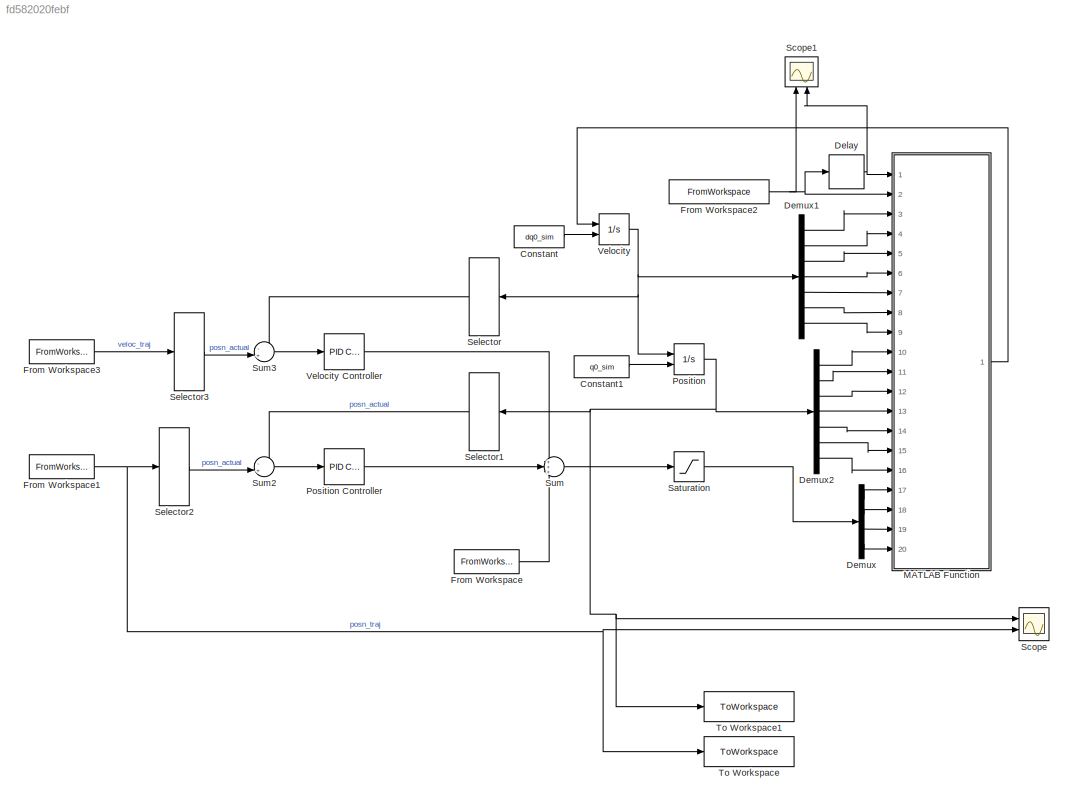
MODEL slx_fd582020febf
KIND model
CONFIG AbsTol = auto
CONFIG EnableMultiTasking = off
CONFIG FixedStep = auto
CONFIG MaxStep = auto
CONFIG MinStep = auto
CONFIG RelTol = 1e-3
CONFIG SampleTimeConstraint = Unconstrained
CONFIG Solver = VariableStepAuto
CONFIG SolverName = VariableStepAuto
CONFIG StartTime = 0.0
CONFIG StopTime = 3
BLOCK [Constant] Constant
  Value = dq0_sim
BLOCK [Constant] Constant1
  Value = q0_sim
BLOCK [Delay] Delay
  DelayLength = 1
  InitialCondition = 12
  InputPortMap = u0
  Ports = [1, 1]
BLOCK [Demux] Demux
  DisplayOption = bar
  Ports = [1, 4]
BLOCK [Demux] Demux1
  DisplayOption = bar
  Outputs = 7
  Ports = [1, 7]
BLOCK [Demux] Demux2
  DisplayOption = bar
  Outputs = 7
  Ports = [1, 7]
BLOCK [FromWorkspace] From Workspace
  Interpolate = off
  OutputAfterFinalValue = Setting to zero
  SampleTime = 0
  VariableName = torques
  ZeroCross = on
BLOCK [FromWorkspace] From Workspace1
  OutputAfterFinalValue = Holding final value
  SampleTime = 0
  VariableName = positions
  ZeroCross = on
BLOCK [FromWorkspace] From Workspace2
  Interpolate = off
  OutputAfterFinalValue = Holding final value
  SampleTime = 0
  VariableName = contact_modes
  ZeroCross = on
BLOCK [FromWorkspace] From Workspace3
  OutputAfterFinalValue = Holding final value
  SampleTime = 0
  VariableName = velocities
  ZeroCross = on
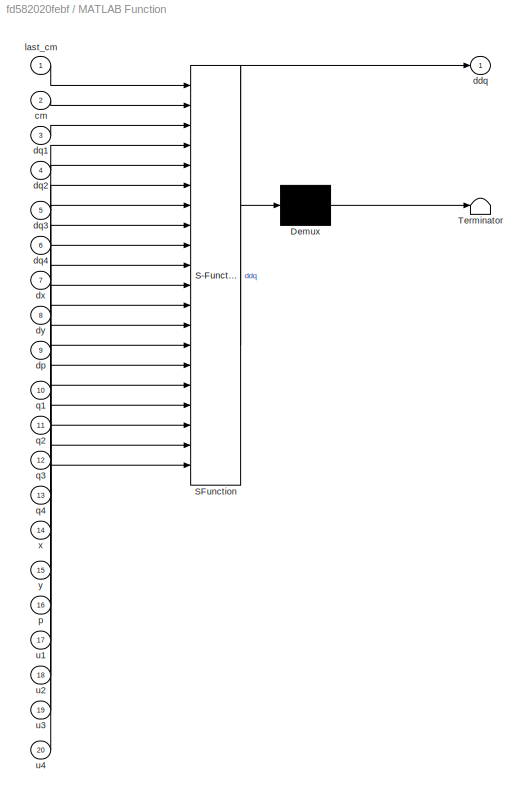
BLOCK [SubSystem] MATLAB Function
  ErrorFcn = Stateflow.Translate.translate
  PermitHierarchicalResolution = ExplicitOnly
  Ports = [20, 1]
  RequestExecContextInheritance = off
  SFBlockType = MATLAB Function
  TreatAsAtomicUnit = on
BLOCK [Demux] MATLAB Function/ Demux 
  Outputs = 1
  Ports = [1, 1]
BLOCK [S-Function] MATLAB Function/ SFunction 
  EnableBusSupport = on
  FunctionName = sf_sfun
  PortCounts = [20 2]
  Ports = [20, 2]
  SFcnIsStateOwnerBlock = off
  SFunctionDeploymentMode = off
  Tag = Stateflow S-Function 2
BLOCK [Terminator] MATLAB Function/ Terminator 
BLOCK [Inport] MATLAB Function/cm
  IconDisplay = Port number
  Port = 2
BLOCK [Outport] MATLAB Function/ddq
  IconDisplay = Port number
BLOCK [Inport] MATLAB Function/dp
  IconDisplay = Port number
  Port = 9
BLOCK [Inport] MATLAB Function/dq1
  IconDisplay = Port number
  Port = 3
BLOCK [Inport] MATLAB Function/dq2
  IconDisplay = Port number
  Port = 4
BLOCK [Inport] MATLAB Function/dq3
  IconDisplay = Port number
  Port = 5
BLOCK [Inport] MATLAB Function/dq4
  IconDisplay = Port number
  Port = 6
BLOCK [Inport] MATLAB Function/dx
  IconDisplay = Port number
  Port = 7
BLOCK [Inport] MATLAB Function/dy
  IconDisplay = Port number
  Port = 8
BLOCK [Inport] MATLAB Function/last_cm
  IconDisplay = Port number
BLOCK [Inport] MATLAB Function/p
  IconDisplay = Port number
  Port = 16
BLOCK [Inport] MATLAB Function/q1
  IconDisplay = Port number
  Port = 10
BLOCK [Inport] MATLAB Function/q2
  IconDisplay = Port number
  Port = 11
BLOCK [Inport] MATLAB Function/q3
  IconDisplay = Port number
  Port = 12
BLOCK [Inport] MATLAB Function/q4
  IconDisplay = Port number
  Port = 13
BLOCK [Inport] MATLAB Function/u1
  IconDisplay = Port number
  Port = 17
BLOCK [Inport] MATLAB Function/u2
  IconDisplay = Port number
  Port = 18
BLOCK [Inport] MATLAB Function/u3
  IconDisplay = Port number
  Port = 19
BLOCK [Inport] MATLAB Function/u4
  IconDisplay = Port number
  Port = 20
BLOCK [Inport] MATLAB Function/x
  IconDisplay = Port number
  Port = 14
BLOCK [Inport] MATLAB Function/y
  IconDisplay = Port number
  Port = 15
BLOCK [Integrator] Position
  InitialConditionSource = external
  Ports = [2, 1]
BLOCK [Reference] Position Controller  REF=simulink/Continuous/PID Controller
  Ports = [1, 1]
  SourceBlock = simulink/Continuous/PID Controller
  SourceProductBaseCode = SL
  SourceProductName = Simulink
  SourceType = PID 1dof
BLOCK [Saturate] Saturation
  InputPortMap = u0
  LowerLimit = -3
  Ports = [1, 1]
  UpperLimit = 3
BLOCK [Scope] Scope
  Floating = off
  NumInputPorts = 2
  Ports = [2]
  ScopeSpecificationString = Simulink.scopes.TimeScopeBlockCfg('CurrentConfiguration', extmgr.ConfigurationSet(extmgr.Configuration('Core','General UI',true),extmgr.Configuration('Core','Source UI',true),extmgr.Configuration('Sources','WiredSimulink',true,'DataLoggingVariableName','ScopeData1'),extmgr.Configuration('Visuals','Time Domain',true,'SerializedDisplays',{struct('MinYLimReal','-1.41329','MaxYLimReal','0.74252','YLab...<+1599ch>
BLOCK [Scope] Scope1
  Floating = off
  NumInputPorts = 2
  Ports = [2]
  ScopeSpecificationString = Simulink.scopes.TimeScopeBlockCfg('CurrentConfiguration', extmgr.ConfigurationSet(extmgr.Configuration('Core','General UI',true),extmgr.Configuration('Core','Source UI',true),extmgr.Configuration('Sources','WiredSimulink',true,'DataLoggingVariableName','ScopeData1'),extmgr.Configuration('Visuals','Time Domain',true,'SerializedDisplays',{struct('MinYLimReal','-0.375','MaxYLimReal','13.375','YLabelR...<+1374ch>
BLOCK [Selector] Selector
  IndexOptions = Index vector (dialog)
  Indices = [1 2 3 4]
  InputPortWidth = 7
  OutputSizes = 1
  Ports = [1, 1]
BLOCK [Selector] Selector1
  IndexOptions = Index vector (dialog)
  Indices = [1 2 3 4]
  InputPortWidth = 7
  OutputSizes = 1
  Ports = [1, 1]
BLOCK [Selector] Selector2
  IndexOptions = Index vector (dialog)
  Indices = [1 2 3 4]
  InputPortWidth = 7
  OutputSizes = 1
  Ports = [1, 1]
BLOCK [Selector] Selector3
  IndexOptions = Index vector (dialog)
  Indices = [1 2 3 4]
  InputPortWidth = 7
  OutputSizes = 1
  Ports = [1, 1]
BLOCK [Sum] Sum
  IconShape = round
  InputSameDT = off
  Inputs = +++
  OutDataTypeStr = Inherit: Inherit via internal rule
  Ports = [3, 1]
  SaturateOnIntegerOverflow = off
BLOCK [Sum] Sum2
  IconShape = round
  InputSameDT = off
  Inputs = -+|
  OutDataTypeStr = Inherit: Inherit via internal rule
  Ports = [2, 1]
  SaturateOnIntegerOverflow = off
BLOCK [Sum] Sum3
  IconShape = round
  InputSameDT = off
  Inputs = -+|
  OutDataTypeStr = Inherit: Inherit via internal rule
  Ports = [2, 1]
  SaturateOnIntegerOverflow = off
BLOCK [ToWorkspace] To Workspace
  FixptAsFi = on
  MaxDataPoints = inf
  Ports = [1]
  SampleTime = -1
  VariableName = trajectory
BLOCK [ToWorkspace] To Workspace1
  FixptAsFi = on
  MaxDataPoints = inf
  Ports = [1]
  SampleTime = -1
  VariableName = actual
BLOCK [Integrator] Velocity
  InitialConditionSource = external
  Ports = [2, 1]
BLOCK [Reference] Velocity Controller  REF=simulink/Continuous/PID Controller
  Ports = [1, 1]
  SourceBlock = simulink/Continuous/PID Controller
  SourceProductBaseCode = SL
  SourceProductName = Simulink
  SourceType = PID 1dof
LINE Constant1:1 -> Position:2
LINE Constant:1 -> Velocity:2
NET Delay:1 -> MATLAB Function:1, Scope1:2
LINE Demux1:1 -> MATLAB Function:3
LINE Demux1:2 -> MATLAB Function:4
LINE Demux1:3 -> MATLAB Function:5
LINE Demux1:4 -> MATLAB Function:6
LINE Demux1:5 -> MATLAB Function:7
LINE Demux1:6 -> MATLAB Function:8
LINE Demux1:7 -> MATLAB Function:9
LINE Demux2:1 -> MATLAB Function:10
LINE Demux2:2 -> MATLAB Function:11
LINE Demux2:3 -> MATLAB Function:12
LINE Demux2:4 -> MATLAB Function:13
LINE Demux2:5 -> MATLAB Function:14
LINE Demux2:6 -> MATLAB Function:15
LINE Demux2:7 -> MATLAB Function:16
LINE Demux:1 -> MATLAB Function:17
LINE Demux:2 -> MATLAB Function:18
LINE Demux:3 -> MATLAB Function:19
LINE Demux:4 -> MATLAB Function:20
NET From Workspace1:1 -> Scope:2, Selector2:1, To Workspace:1
NET From Workspace2:1 -> Delay:1, MATLAB Function:2, Scope1:1
LINE From Workspace3:1 -> Selector3:1
LINE From Workspace:1 -> Sum:3
LINE MATLAB Function:1 -> Velocity:1
LINE Position Controller:1 -> Sum:2
NET Position:1 -> Demux2:1, Scope:1, Selector1:1, To Workspace1:1
LINE Saturation:1 -> Demux:1
LINE Selector1:1 -> Sum2:1
LINE Selector2:1 -> Sum2:2
LINE Selector3:1 -> Sum3:2
LINE Selector:1 -> Sum3:1
LINE Sum2:1 -> Position Controller:1
LINE Sum3:1 -> Velocity Controller:1
LINE Sum:1 -> Saturation:1
LINE Velocity Controller:1 -> Sum:1
NET Velocity:1 -> Demux1:1, Position:1, Selector:1
note: NET lines group one-source signal fan-out (src -> all destinations, sorted); 1:1 wires keep LINE
CHART MATLAB Function states=1 transitions=1
  STATE_LABEL 'eML_blk_kernel()'
  STATE_LABEL "SCRIPT:\nfunction ddq = fcn(last_cm,cm,dq1,dq2,dq3,dq4,dx,dy,dp,q1,q2,q3,q4,x,y,p,u1,u2,u3,u4)\nq = [q1;q2;q3;q4;x;y;p];\ndq = [dq1;dq2;dq3;dq4;dx;dy;dp];\nif last_cm ~= cm\n    switch cm\n        case 1\n            dq = dq - simulinkAdag1(q(7),q(1),q(2),q(3),q(4))'*simulinkA1(q(7),q(1),q(2))*dq;\n        case 2\n            dq = dq - simulinkAdag2(q(7),q(1),q(2),q(3),q(4))'*simulinkA2(q(7),q(3),q(4))*dq;...<+577ch>"
